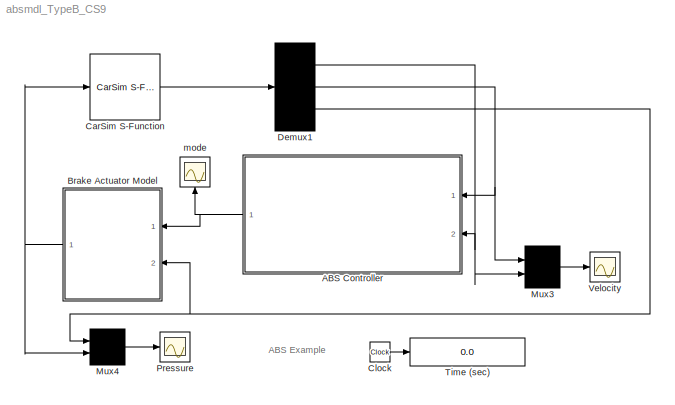
MODEL absmdl_TypeB_CS9
KIND model
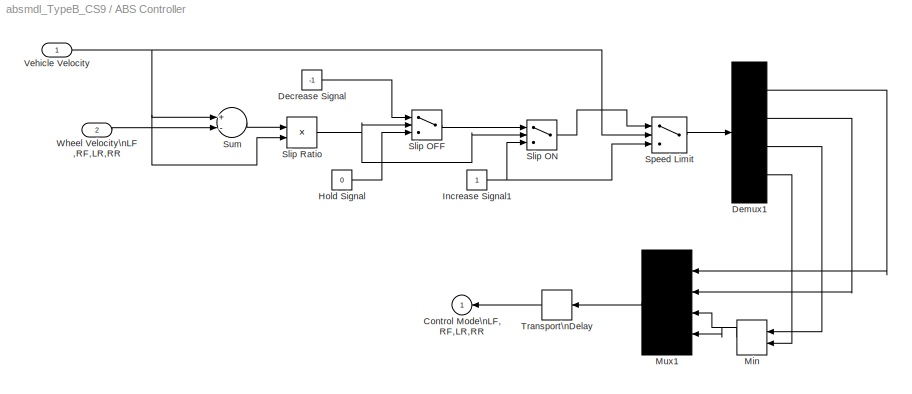
BLOCK [SubSystem] ABS Controller
  FunctionWithSeparateData = off
  MaskHideContents = off
  MinAlgLoopOccurrences = off
  Opaque = off
  Ports = [2, 1]
  PropExecContextOutsideSubsystem = off
  RTWSystemCode = Auto
  RequestExecContextInheritance = off
  SID = 1
BLOCK [Outport] ABS Controller/Control Mode\nLF,RF,LR,RR
  IconDisplay = Port number
  InitialOutput = 0
  SID = 16
BLOCK [Constant] ABS Controller/Decrease Signal
  SID = 4
  Value = -1
BLOCK [Demux] ABS Controller/Demux1
  Ports = [1, 4]
  SID = 5
BLOCK [Constant] ABS Controller/Hold Signal
  SID = 6
  Value = 0
BLOCK [Constant] ABS Controller/Increase Signal1
  SID = 7
BLOCK [MinMax] ABS Controller/Min
  Function = min
  Inputs = 2
  Ports = [2, 1]
  SID = 8
BLOCK [Mux] ABS Controller/Mux1
  Ports = [4, 1]
  SID = 9
BLOCK [Switch] ABS Controller/Slip OFF
  SID = 10
  Threshold = 0.2
BLOCK [Switch] ABS Controller/Slip ON
  SID = 11
  Threshold = 0.05
BLOCK [Product] ABS Controller/Slip Ratio
  Inputs = */
  Ports = [2, 1]
  SID = 12
BLOCK [Switch] ABS Controller/Speed Limit
  SID = 13
  Threshold = 6
BLOCK [Sum] ABS Controller/Sum
  Inputs = +-
  Ports = [2, 1]
  SID = 14
BLOCK [TransportDelay] ABS Controller/Transport\nDelay
  DelayTime = 0.005
  Ports = [1, 1]
  SID = 15
BLOCK [Inport] ABS Controller/Vehicle Velocity
  IconDisplay = Port number
  SID = 2
BLOCK [Inport] ABS Controller/Wheel Velocity\nLF,RF,LR,RR
  IconDisplay = Port number
  Port = 2
  SID = 3
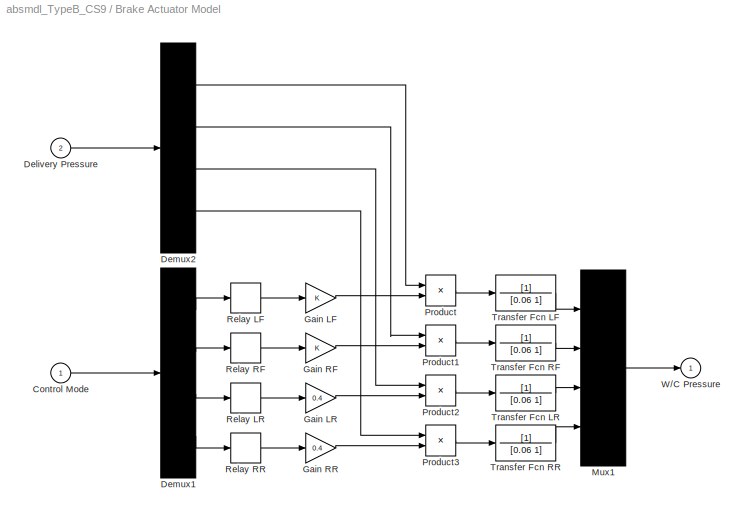
BLOCK [SubSystem] Brake Actuator Model
  FunctionWithSeparateData = off
  MaskHideContents = off
  MinAlgLoopOccurrences = off
  Opaque = off
  Ports = [2, 1]
  PropExecContextOutsideSubsystem = off
  RTWSystemCode = Auto
  RequestExecContextInheritance = off
  SID = 17
BLOCK [Inport] Brake Actuator Model/Control Mode
  IconDisplay = Port number
  SID = 18
BLOCK [Inport] Brake Actuator Model/Delivery Pressure
  IconDisplay = Port number
  Port = 2
  SID = 19
BLOCK [Demux] Brake Actuator Model/Demux1
  Ports = [1, 4]
  SID = 20
BLOCK [Demux] Brake Actuator Model/Demux2
  Ports = [1, 4]
  SID = 21
BLOCK [Gain] Brake Actuator Model/Gain LF
  SID = 22
BLOCK [Gain] Brake Actuator Model/Gain LR
  Gain = 0.4
  SID = 23
BLOCK [Gain] Brake Actuator Model/Gain RF
  SID = 24
BLOCK [Gain] Brake Actuator Model/Gain RR
  Gain = 0.4
  SID = 25
BLOCK [Mux] Brake Actuator Model/Mux1
  Ports = [4, 1]
  SID = 26
BLOCK [Product] Brake Actuator Model/Product
  Ports = [2, 1]
  SID = 27
BLOCK [Product] Brake Actuator Model/Product1
  Ports = [2, 1]
  SID = 28
BLOCK [Product] Brake Actuator Model/Product2
  Ports = [2, 1]
  SID = 29
BLOCK [Product] Brake Actuator Model/Product3
  Ports = [2, 1]
  SID = 30
BLOCK [Relay] Brake Actuator Model/Relay LF
  OffSwitchValue = -0.5
  OnSwitchValue = 0.5
  SID = 31
BLOCK [Relay] Brake Actuator Model/Relay LR
  OffSwitchValue = -0.5
  OnSwitchValue = 0.5
  SID = 32
BLOCK [Relay] Brake Actuator Model/Relay RF
  OffSwitchValue = -0.5
  OnSwitchValue = 0.5
  SID = 33
BLOCK [Relay] Brake Actuator Model/Relay RR
  OffSwitchValue = -0.5
  OnSwitchValue = 0.5
  SID = 34
BLOCK [TransferFcn] Brake Actuator Model/Transfer Fcn LF
  Denominator = [0.06 1]
  SID = 35
BLOCK [TransferFcn] Brake Actuator Model/Transfer Fcn LR
  Denominator = [0.06 1]
  SID = 36
BLOCK [TransferFcn] Brake Actuator Model/Transfer Fcn RF
  Denominator = [0.06 1]
  SID = 37
BLOCK [TransferFcn] Brake Actuator Model/Transfer Fcn RR
  Denominator = [0.06 1]
  SID = 38
BLOCK [Outport] Brake Actuator Model/W//C Pressure
  IconDisplay = Port number
  InitialOutput = 0
  SID = 39
BLOCK [Reference] CarSim S-Function  REF=Solver_SF/CarSim S-Function
  Ports = [1, 1]
  Priority = 1
  SID = 40
  SIMFILE = simfile.sim
  SourceBlock = Solver_SF/CarSim S-Function
  SourceType = Vehicle math model library
BLOCK [Clock] Clock
  Decimation = 10
  SID = 41
BLOCK [Demux] Demux1
  Outputs = [4 1 4]
  Ports = [1, 3]
  SID = 42
BLOCK [Mux] Mux3
  Inputs = 2
  Ports = [2, 1]
  SID = 43
BLOCK [Mux] Mux4
  Inputs = 2
  Ports = [2, 1]
  SID = 44
BLOCK [Scope] Pressure
  DataFormat = Array
  Floating = off
  LimitDataPoints = off
  NumInputPorts = 1
  Ports = [1]
  SID = 45
  SampleTime = 100
  TickLabels = on
  YMax = 20
  YMin = 0
  ZoomMode = yonly
BLOCK [Display] Time (sec)
  Decimation = 100
  Format = bank
  Lockdown = off
  Ports = [1]
  SID = 46
BLOCK [Scope] Velocity
  DataFormat = Array
  Floating = off
  LimitDataPoints = off
  NumInputPorts = 1
  Ports = [1]
  SID = 47
  SampleTime = 100
  TickLabels = on
  YMax = 100
  YMin = -10
  ZoomMode = yonly
BLOCK [Scope] mode
  DataFormat = Array
  Floating = off
  NumInputPorts = 1
  Ports = [1]
  SID = 48
  SampleTime = 100
  TickLabels = on
  YMax = 1
  YMin = -1
ANNOTATION (root): ABS Example
LINE ABS Controller/Decrease Signal:1 -> ABS Controller/Slip OFF:1
LINE ABS Controller/Demux1:1 -> ABS Controller/Mux1:1
LINE ABS Controller/Demux1:2 -> ABS Controller/Mux1:2
LINE ABS Controller/Demux1:3 -> ABS Controller/Min:1
LINE ABS Controller/Demux1:4 -> ABS Controller/Min:2
LINE ABS Controller/Hold Signal:1 -> ABS Controller/Slip OFF:3
NET ABS Controller/Increase Signal1:1 -> ABS Controller/Slip ON:3, ABS Controller/Speed Limit:3
NET ABS Controller/Min:1 -> ABS Controller/Mux1:3, ABS Controller/Mux1:4
LINE ABS Controller/Mux1:1 -> ABS Controller/Transport\nDelay:1
LINE ABS Controller/Slip OFF:1 -> ABS Controller/Slip ON:1
LINE ABS Controller/Slip ON:1 -> ABS Controller/Speed Limit:1
NET ABS Controller/Slip Ratio:1 -> ABS Controller/Slip OFF:2, ABS Controller/Slip ON:2
LINE ABS Controller/Speed Limit:1 -> ABS Controller/Demux1:1
LINE ABS Controller/Sum:1 -> ABS Controller/Slip Ratio:1
LINE ABS Controller/Transport\nDelay:1 -> ABS Controller/Control Mode\nLF,RF,LR,RR:1
NET ABS Controller/Vehicle Velocity:1 -> ABS Controller/Slip Ratio:2, ABS Controller/Speed Limit:2, ABS Controller/Sum:1
LINE ABS Controller/Wheel Velocity\nLF,RF,LR,RR:1 -> ABS Controller/Sum:2
NET ABS Controller:1 -> Brake Actuator Model:1, mode:1
LINE Brake Actuator Model/Control Mode:1 -> Brake Actuator Model/Demux1:1
LINE Brake Actuator Model/Delivery Pressure:1 -> Brake Actuator Model/Demux2:1
LINE Brake Actuator Model/Demux1:1 -> Brake Actuator Model/Relay LF:1
LINE Brake Actuator Model/Demux1:2 -> Brake Actuator Model/Relay RF:1
LINE Brake Actuator Model/Demux1:3 -> Brake Actuator Model/Relay LR:1
LINE Brake Actuator Model/Demux1:4 -> Brake Actuator Model/Relay RR:1
LINE Brake Actuator Model/Demux2:1 -> Brake Actuator Model/Product:1
LINE Brake Actuator Model/Demux2:2 -> Brake Actuator Model/Product1:1
LINE Brake Actuator Model/Demux2:3 -> Brake Actuator Model/Product2:1
LINE Brake Actuator Model/Demux2:4 -> Brake Actuator Model/Product3:1
LINE Brake Actuator Model/Gain LF:1 -> Brake Actuator Model/Product:2
LINE Brake Actuator Model/Gain LR:1 -> Brake Actuator Model/Product2:2
LINE Brake Actuator Model/Gain RF:1 -> Brake Actuator Model/Product1:2
LINE Brake Actuator Model/Gain RR:1 -> Brake Actuator Model/Product3:2
LINE Brake Actuator Model/Mux1:1 -> Brake Actuator Model/W//C Pressure:1
LINE Brake Actuator Model/Product1:1 -> Brake Actuator Model/Transfer Fcn RF:1
LINE Brake Actuator Model/Product2:1 -> Brake Actuator Model/Transfer Fcn LR:1
LINE Brake Actuator Model/Product3:1 -> Brake Actuator Model/Transfer Fcn RR:1
LINE Brake Actuator Model/Product:1 -> Brake Actuator Model/Transfer Fcn LF:1
LINE Brake Actuator Model/Relay LF:1 -> Brake Actuator Model/Gain LF:1
LINE Brake Actuator Model/Relay LR:1 -> Brake Actuator Model/Gain LR:1
LINE Brake Actuator Model/Relay RF:1 -> Brake Actuator Model/Gain RF:1
LINE Brake Actuator Model/Relay RR:1 -> Brake Actuator Model/Gain RR:1
LINE Brake Actuator Model/Transfer Fcn LF:1 -> Brake Actuator Model/Mux1:1
LINE Brake Actuator Model/Transfer Fcn LR:1 -> Brake Actuator Model/Mux1:3
LINE Brake Actuator Model/Transfer Fcn RF:1 -> Brake Actuator Model/Mux1:2
LINE Brake Actuator Model/Transfer Fcn RR:1 -> Brake Actuator Model/Mux1:4
NET Brake Actuator Model:1 -> CarSim S-Function:1, Mux4:2
LINE CarSim S-Function:1 -> Demux1:1
LINE Clock:1 -> Time (sec):1
NET Demux1:1 -> ABS Controller:2, Mux3:2
NET Demux1:2 -> ABS Controller:1, Mux3:1
NET Demux1:3 -> Brake Actuator Model:2, Mux4:1
LINE Mux3:1 -> Velocity:1
LINE Mux4:1 -> Pressure:1
note: NET lines group one-source signal fan-out (src -> all destinations, sorted); 1:1 wires keep LINE
